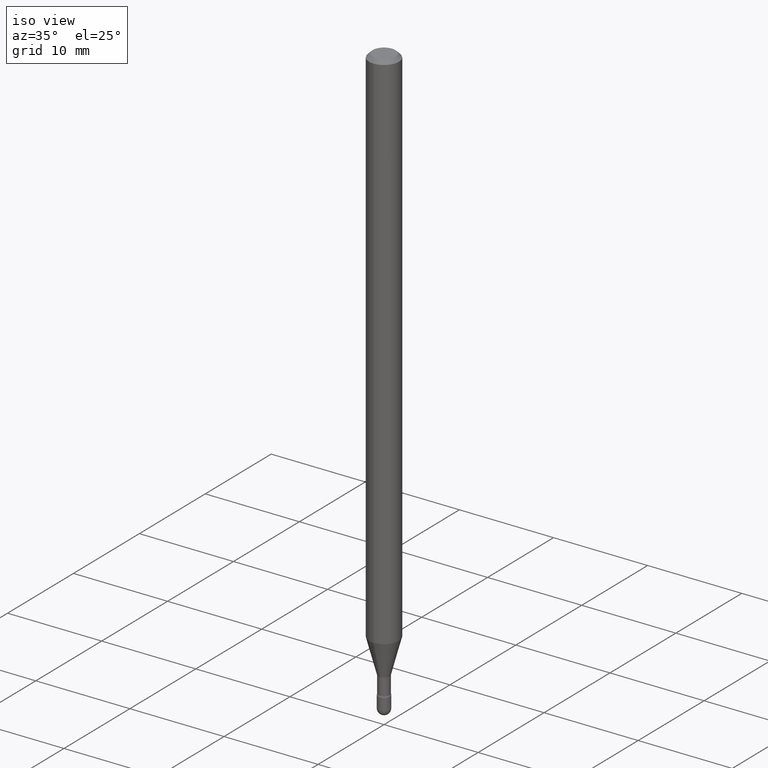
[diagram: clean part render]
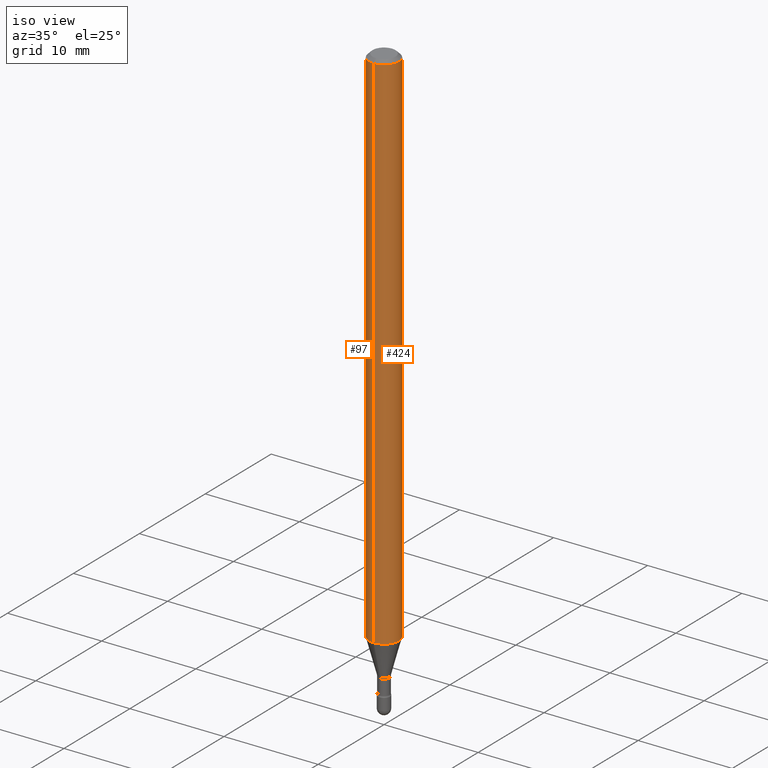
[diagram: same view with one multi-face feature highlighted, each face labeled with its STEP entity id]
A machine part, iso view. The highlighted faces form ONE feature: a constant-radius fillet chain: 2 tangent blend faces with common blend radius 1.5875 mm. The faces share edges in the B-rep.
Their STEP definitions:
[1] entity #424 (Cylinder):
#2 = VERTEX_POINT ( 'NONE', #441 ) ;
#3 = DIRECTION ( 'NONE',  ( -2.445458152833989696E-29, 3.491496595048338889E-15, 1.000000000000000000 ) ) ;
#9 = DIRECTION ( 'NONE',  ( -2.445458152833989696E-29, 3.491496595048338889E-15, 1.000000000000000000 ) ) ;
#31 = VECTOR ( 'NONE', #354, 39.37007874015748143 ) ;
#43 = VERTEX_POINT ( 'NONE', #545 ) ;
#44 = CIRCLE ( 'NONE', #274, 0.06250000000000000000 ) ;
#57 = AXIS2_PLACEMENT_3D ( 'NONE', #350, #9, #269 ) ;
#65 = LINE ( 'NONE', #99, #402 ) ;
#96 = CIRCLE ( 'NONE', #57, 0.06250000000000000000 ) ;
#98 = CYLINDRICAL_SURFACE ( 'NONE', #135, 0.06250000000000000000 ) ;
#99 = CARTESIAN_POINT ( 'NONE',  ( 4.440892098500625669E-16, 0.06250000000000000000, 2.598548617007248827E-16 ) ) ;
#135 = AXIS2_PLACEMENT_3D ( 'NONE', #482, #3, #192 ) ;
#160 = CARTESIAN_POINT ( 'NONE',  ( 4.440892098501169490E-16, 0.06249999999999995837, -0.01500000000000030129 ) ) ;
#192 = DIRECTION ( 'NONE',  ( -6.982962677686265922E-15, -1.000000000000000000, 3.491496595048337706E-15 ) ) ;
#195 = ORIENTED_EDGE ( 'NONE', *, *, #499, .F. ) ;
#231 = EDGE_LOOP ( 'NONE', ( #399, #484, #195, #358 ) ) ;
#256 = EDGE_CURVE ( 'NONE', #521, #522, #65, .T. ) ;
#269 = DIRECTION ( 'NONE',  ( -6.982962677686265922E-15, -1.000000000000000000, 4.370956789862821150E-15 ) ) ;
#274 = AXIS2_PLACEMENT_3D ( 'NONE', #398, #401, #449 ) ;
#287 = EDGE_CURVE ( 'NONE', #2, #521, #96, .T. ) ;
#344 = LINE ( 'NONE', #478, #31 ) ;
#350 = CARTESIAN_POINT ( 'NONE',  ( 5.390890270267638833E-29, -7.696829733563806270E-15, -2.204450018504814590 ) ) ;
#354 = DIRECTION ( 'NONE',  ( -2.445458152833989696E-29, 3.491496595048338889E-15, 1.000000000000000000 ) ) ;
#358 = ORIENTED_EDGE ( 'NONE', *, *, #429, .F. ) ;
#394 = FACE_OUTER_BOUND ( 'NONE', #231, .T. ) ;
#395 = DIRECTION ( 'NONE',  ( -2.445458152833989696E-29, 3.491496595048338889E-15, 1.000000000000000000 ) ) ;
#398 = CARTESIAN_POINT ( 'NONE',  ( 3.668187229251004706E-31, -5.237244892572537719E-17, -0.01500000000000008271 ) ) ;
#399 = ORIENTED_EDGE ( 'NONE', *, *, #287, .T. ) ;
#401 = DIRECTION ( 'NONE',  ( -2.445458152833989696E-29, 3.491496595048338889E-15, 1.000000000000000000 ) ) ;
#402 = VECTOR ( 'NONE', #395, 39.37007874015748143 ) ;
#424 = ADVANCED_FACE ( 'NONE', ( #394 ), #98, .T. ) ;
#429 = EDGE_CURVE ( 'NONE', #2, #43, #344, .T. ) ;
#441 = CARTESIAN_POINT ( 'NONE',  ( -4.364351673553378297E-16, -0.06250000000000771605, -2.204450018504814146 ) ) ;
#449 = DIRECTION ( 'NONE',  ( -6.982962677686265922E-15, -1.000000000000000000, 3.483106191921935554E-15 ) ) ;
#478 = CARTESIAN_POINT ( 'NONE',  ( -4.364351673553916201E-16, -0.06250000000000000000, 6.962919360817671945E-16 ) ) ;
#482 = CARTESIAN_POINT ( 'NONE',  ( -1.169113584055446105E-44, 1.669184350826100908E-30, 4.780733988912460139E-16 ) ) ;
#484 = ORIENTED_EDGE ( 'NONE', *, *, #256, .T. ) ;
#499 = EDGE_CURVE ( 'NONE', #43, #522, #44, .T. ) ;
#521 = VERTEX_POINT ( 'NONE', #536 ) ;
#522 = VERTEX_POINT ( 'NONE', #160 ) ;
#536 = CARTESIAN_POINT ( 'NONE',  ( 4.440892098501162587E-16, 0.06249999999999227007, -2.204450018504814590 ) ) ;
#545 = CARTESIAN_POINT ( 'NONE',  ( -4.364351673553912750E-16, -0.06250000000000005551, -0.01499999999999986587 ) ) ;
[2] entity #97 (Cylinder):
#2 = VERTEX_POINT ( 'NONE', #441 ) ;
#31 = VECTOR ( 'NONE', #354, 39.37007874015748143 ) ;
#43 = VERTEX_POINT ( 'NONE', #545 ) ;
#47 = AXIS2_PLACEMENT_3D ( 'NONE', #151, #520, #517 ) ;
#65 = LINE ( 'NONE', #99, #402 ) ;
#73 = CARTESIAN_POINT ( 'NONE',  ( -1.169113584055446105E-44, 1.669184350826100908E-30, 4.780733988912460139E-16 ) ) ;
#85 = DIRECTION ( 'NONE',  ( -2.445458152833989696E-29, 3.491496595048338889E-15, 1.000000000000000000 ) ) ;
#97 = ADVANCED_FACE ( 'NONE', ( #168 ), #330, .T. ) ;
#99 = CARTESIAN_POINT ( 'NONE',  ( 4.440892098500625669E-16, 0.06250000000000000000, 2.598548617007248827E-16 ) ) ;
#102 = DIRECTION ( 'NONE',  ( -6.982962677686265922E-15, -1.000000000000000000, 4.370956789862821150E-15 ) ) ;
#113 = EDGE_LOOP ( 'NONE', ( #154, #352, #193, #311 ) ) ;
#126 = DIRECTION ( 'NONE',  ( -2.445458152833989696E-29, 3.491496595048338889E-15, 1.000000000000000000 ) ) ;
#134 = CARTESIAN_POINT ( 'NONE',  ( 5.390890270267638833E-29, -7.696829733563806270E-15, -2.204450018504814590 ) ) ;
#151 = CARTESIAN_POINT ( 'NONE',  ( 3.668187229251004706E-31, -5.237244892572537719E-17, -0.01500000000000008271 ) ) ;
#154 = ORIENTED_EDGE ( 'NONE', *, *, #256, .F. ) ;
#160 = CARTESIAN_POINT ( 'NONE',  ( 4.440892098501169490E-16, 0.06249999999999995837, -0.01500000000000030129 ) ) ;
#168 = FACE_OUTER_BOUND ( 'NONE', #113, .T. ) ;
#193 = ORIENTED_EDGE ( 'NONE', *, *, #429, .T. ) ;
#244 = AXIS2_PLACEMENT_3D ( 'NONE', #73, #126, #496 ) ;
#256 = EDGE_CURVE ( 'NONE', #521, #522, #65, .T. ) ;
#271 = AXIS2_PLACEMENT_3D ( 'NONE', #134, #85, #102 ) ;
#311 = ORIENTED_EDGE ( 'NONE', *, *, #332, .F. ) ;
#319 = CIRCLE ( 'NONE', #271, 0.06250000000000000000 ) ;
#330 = CYLINDRICAL_SURFACE ( 'NONE', #244, 0.06250000000000000000 ) ;
#332 = EDGE_CURVE ( 'NONE', #522, #43, #540, .T. ) ;
#344 = LINE ( 'NONE', #478, #31 ) ;
#352 = ORIENTED_EDGE ( 'NONE', *, *, #414, .T. ) ;
#354 = DIRECTION ( 'NONE',  ( -2.445458152833989696E-29, 3.491496595048338889E-15, 1.000000000000000000 ) ) ;
#395 = DIRECTION ( 'NONE',  ( -2.445458152833989696E-29, 3.491496595048338889E-15, 1.000000000000000000 ) ) ;
#402 = VECTOR ( 'NONE', #395, 39.37007874015748143 ) ;
#414 = EDGE_CURVE ( 'NONE', #521, #2, #319, .T. ) ;
#429 = EDGE_CURVE ( 'NONE', #2, #43, #344, .T. ) ;
#441 = CARTESIAN_POINT ( 'NONE',  ( -4.364351673553378297E-16, -0.06250000000000771605, -2.204450018504814146 ) ) ;
#478 = CARTESIAN_POINT ( 'NONE',  ( -4.364351673553916201E-16, -0.06250000000000000000, 6.962919360817671945E-16 ) ) ;
#496 = DIRECTION ( 'NONE',  ( -6.982962677686265922E-15, -1.000000000000000000, 3.491496595048337706E-15 ) ) ;
#517 = DIRECTION ( 'NONE',  ( -6.982962677686265922E-15, -1.000000000000000000, 3.483106191921935554E-15 ) ) ;
#520 = DIRECTION ( 'NONE',  ( -2.445458152833989696E-29, 3.491496595048338889E-15, 1.000000000000000000 ) ) ;
#521 = VERTEX_POINT ( 'NONE', #536 ) ;
#522 = VERTEX_POINT ( 'NONE', #160 ) ;
#536 = CARTESIAN_POINT ( 'NONE',  ( 4.440892098501162587E-16, 0.06249999999999227007, -2.204450018504814590 ) ) ;
#540 = CIRCLE ( 'NONE', #47, 0.06250000000000000000 ) ;
#545 = CARTESIAN_POINT ( 'NONE',  ( -4.364351673553912750E-16, -0.06250000000000005551, -0.01499999999999986587 ) ) ;